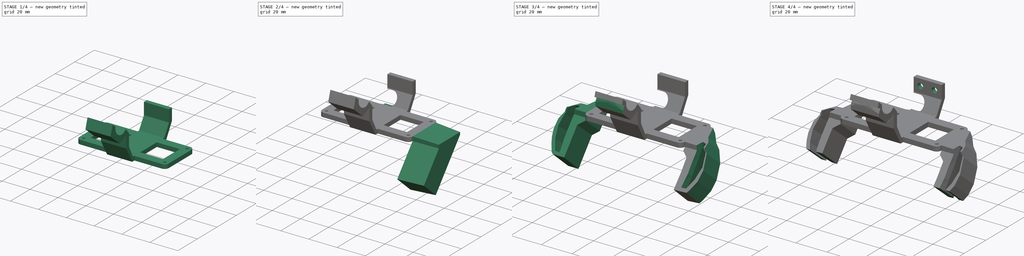
[diagram: build sequence overview — one tinted view per stage of 4, left to right]
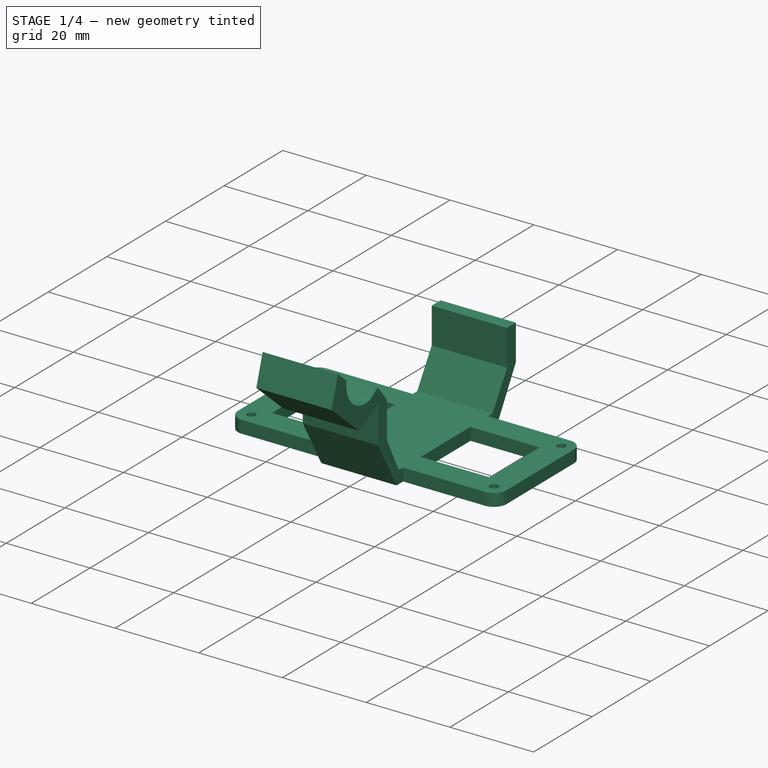
[diagram: stage 1 of 4 — iso view after this stage's code; geometry added in this stage tinted green]
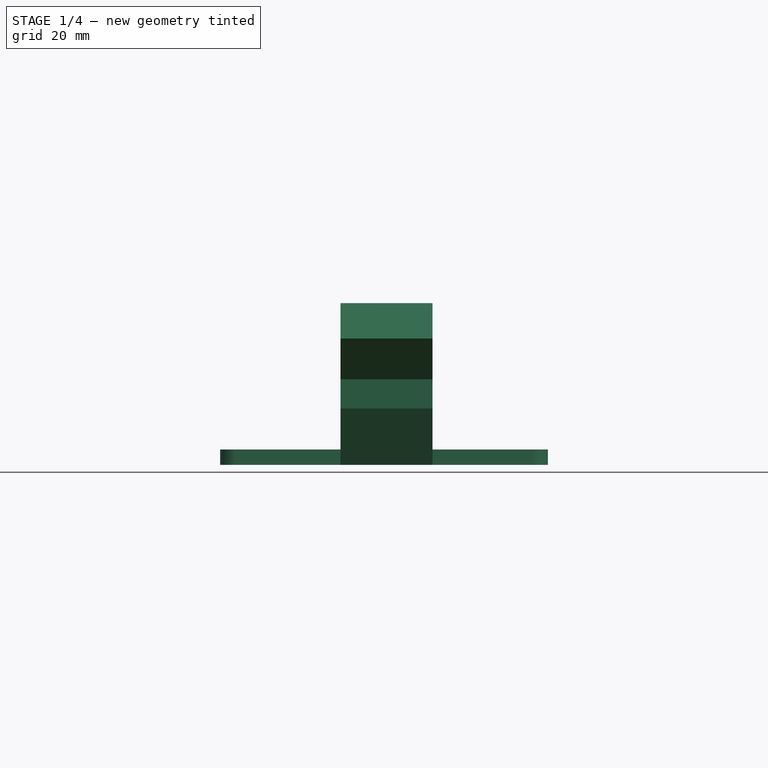
[diagram: stage 1 of 4 — front view after this stage's code; geometry added in this stage tinted green]
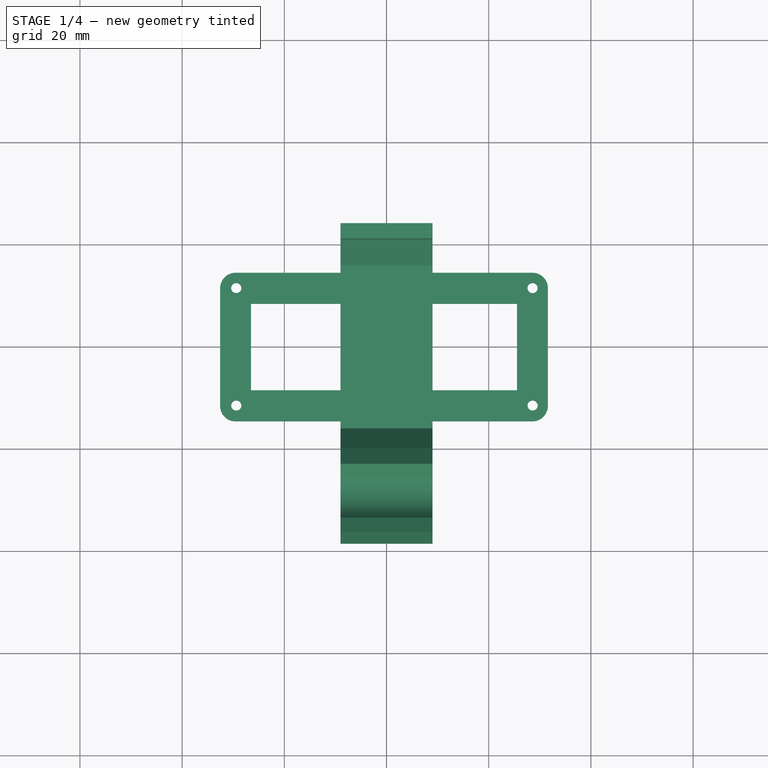
[diagram: stage 1 of 4 — top view after this stage's code; geometry added in this stage tinted green]
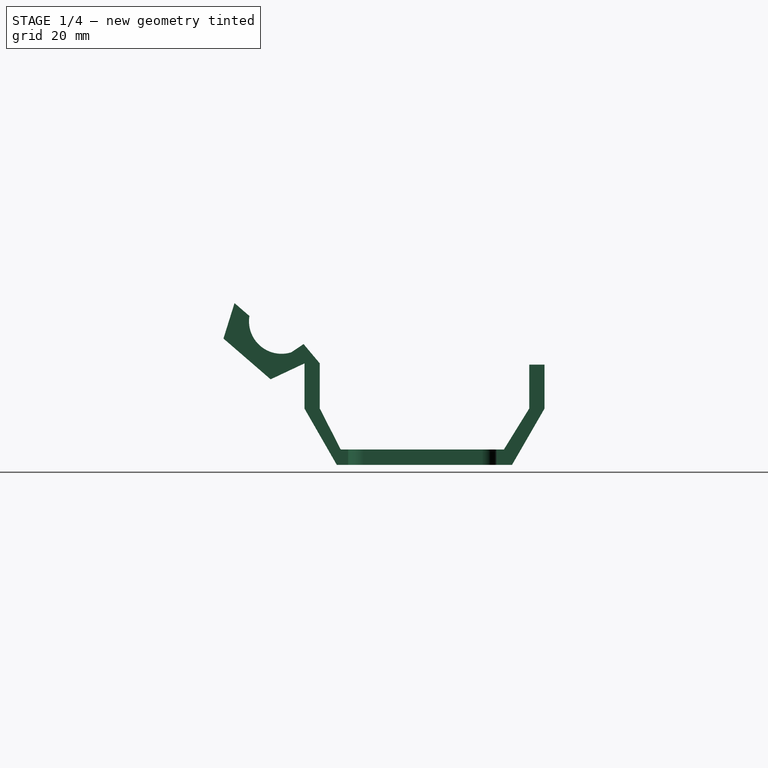
[diagram: stage 1 of 4 — right view after this stage's code; geometry added in this stage tinted green]
FCSTD DOCUMENT  (FreeCAD 1.0R39319 (Git))
Label: mount
License: All rights reserved
LicenseURL: https://en.wikipedia.org/wiki/All_rights_reserved
objects: Sketcher::SketchObject×8, PartDesign::Pad×4, PartDesign::Pocket×4, Part::Feature×3, App::Link×1, PartDesign::Boolean×1, PartDesign::Body×1
note: 46 computed .brp shape members not serialized (recipe doc carries the construction recipe); baked Part::Feature solids carry a one-line shape summary decoded from their .brp
EXTERNAL_REF file=maixsense.FCStd obj=Body

FEATURE [App::Link] Link
  LinkPlacement = pos=(-19.7,18.4,8.2) rot=(0,0,-1;1.5708rad)
  LinkedObject = -> <external maixsense.FCStd>#Body
  Placement = pos=(-19.7,18.4,8.2) rot=(0,0,-1;1.5708rad)
FEATURE [Part::Feature] Feature  label="Raspberry Pi Zero 2 W001"
  Placement = pos=(-0.4,1.3e-15,-7.1) rot=(0,-0.707107,-0.707107;3.14159rad)
  shape: bbox 65.8 x 30.59 x 5.051 mm, 7119 faces, 268 solids (baked)
FEATURE [Sketcher::SketchObject] Sketch
  ArcFitTolerance = 1e-06
  AttachmentSupport = -> [YZ_Plane]
  FullyConstrained = false
  MakeInternals = false
  MapMode = 5
  Placement = pos=(0,0,0) rot=(0.57735,0.57735,0.57735;2.0944rad)
  sketch-geometry (20):
    g0: LineSegment [constr] StartX=0 StartY=0 StartZ=0 EndX=-20.0923 EndY=0 EndZ=0
    g1: LineSegment [constr] StartX=0 StartY=0 StartZ=0 EndX=20.8974 EndY=0 EndZ=0
    g2: LineSegment StartX=20.8974 StartY=0 StartZ=0 EndX=20.8974 EndY=8.60191 EndZ=0
    g3: LineSegment StartX=20.8974 StartY=8.60191 StartZ=0 EndX=23.8974 EndY=8.60191 EndZ=0
    g4: LineSegment StartX=23.8974 StartY=8.60191 StartZ=0 EndX=23.8974 EndY=0 EndZ=0
    g5: LineSegment StartX=-23.0923 StartY=0 StartZ=0 EndX=-16.7597 EndY=-11.026 EndZ=0
    g6: LineSegment StartX=23.8974 StartY=0 StartZ=0 EndX=17.5315 EndY=-11.026 EndZ=0
    g7: LineSegment StartX=17.5315 StartY=-11.026 StartZ=0 EndX=-16.7597 EndY=-11.026 EndZ=0
    g8: LineSegment StartX=15.9428 StartY=-8.01294 StartZ=0 EndX=-15.9958 EndY=-8.01294 EndZ=0
    g9: LineSegment StartX=-15.9958 StartY=-8.01294 StartZ=0 EndX=-20.0923 EndY=0 EndZ=0
    g10: LineSegment StartX=15.9428 StartY=-8.01294 StartZ=0 EndX=20.8974 EndY=0 EndZ=0
    g11: ArcOfCircle CenterX=-27.5798 CenterY=17.0816 CenterZ=0 NormalX=0 NormalY=0 NormalZ=1 AngleXU=0 Radius=6.37006 StartAngle=2.97846 EndAngle=5.0237
    g12: LineSegment StartX=-33.8653 StartY=18.1161 StartZ=0 EndX=-36.7757 EndY=20.6243 EndZ=0
    g13: LineSegment StartX=-20.0923 StartY=8.83189 StartZ=0 EndX=-23.2666 EndY=12.6185 EndZ=0
    g14: LineSegment StartX=-23.0923 StartY=8.83189 StartZ=0 EndX=-29.7111 EndY=5.71845 EndZ=0
    g15: LineSegment StartX=-29.7111 StartY=5.71845 StartZ=0 EndX=-38.9446 EndY=13.6958 EndZ=0
    g16: LineSegment StartX=-23.0923 StartY=0 StartZ=0 EndX=-23.0923 EndY=8.83189 EndZ=0
    g17: LineSegment StartX=-20.0923 StartY=8.83189 StartZ=0 EndX=-20.0923 EndY=0 EndZ=0
    g18: LineSegment StartX=-25.6286 StartY=11.0177 StartZ=0 EndX=-23.2666 EndY=12.6185 EndZ=0
    g19: LineSegment StartX=-36.7757 StartY=20.6243 StartZ=0 EndX=-38.9446 EndY=13.6958 EndZ=0
  constraints (34):
    c: Coincident(g0,g-1)
    c: Horizontal(g0)
    c: Coincident(g1,g0)
    c: PointOnObject(g1,g-1)
    c: Coincident(g2,g1)
    c: Vertical(g2)
    c: Distance(g3) = 3
    c: Coincident(g3,g2)
    c: Horizontal(g3)
    c: PointOnObject(g5,g-1)
    c: Coincident(g4,g3)
    c: PointOnObject(g4,g-1)
    c: Vertical(g4)
    c: Coincident(g6,g4)
    c: Coincident(g7,g6)
    c: Coincident(g7,g5)
    c: Horizontal(g7)
    c: Horizontal(g8)
    c: Coincident(g9,g8)
    c: Coincident(g9,g0)
    c: Coincident(g10,g8)
    c: Coincident(g10,g1)
    c: Coincident(g11,g12)
    c: Coincident(g15,g14)
    c: Coincident(g16,g5)
    c: Coincident(g16,g14)
    c: Vertical(g16)
    c: Coincident(g17,g13)
    c: Coincident(g17,g0)
    c: Vertical(g17)
    c: Coincident(g18,g11)
    c: Coincident(g18,g13)
    c: Coincident(g19,g12)
    c: Coincident(g19,g15)
FEATURE [PartDesign::Pad] Pad
  Direction = (1,0,0)
  Length = 18
  Length2 = 10
  Midplane = true
  Placement = pos=(0,0,0) rot=(1,1,1;2.0944rad)
  Profile = -> Sketch
  ReferenceAxis = -> Sketch [N_Axis]
  Refine = true
  Suppressed = false
  Type = 0
FEATURE [Sketcher::SketchObject] Sketch001
  ArcFitTolerance = 1e-06
  AttachmentSupport = -> [Pad]
  FullyConstrained = false
  MakeInternals = false
  MapMode = 5
  Placement = pos=(1.2e-15,-3.7e-15,-11.026) rot=(0.707107,0.707107,0;3.14159rad)
  sketch-geometry (20):
    g0: ArcOfCircle CenterX=-11.5396 CenterY=28.5572 CenterZ=0 NormalX=0 NormalY=0 NormalZ=1 AngleXU=0 Radius=3.02156 StartAngle=1.5708 EndAngle=3.14159
    g1: ArcOfCircle CenterX=-11.5437 CenterY=-29.5407 CenterZ=0 NormalX=0 NormalY=0 NormalZ=1 AngleXU=0 Radius=3.02509 StartAngle=3.21254 EndAngle=4.71239
    g2: ArcOfCircle CenterX=11.4506 CenterY=-29.5411 CenterZ=0 NormalX=0 NormalY=0 NormalZ=1 AngleXU=0 Radius=3.02547 StartAngle=4.69011 EndAngle=6.28319
    g3: LineSegment StartX=-14.5612 StartY=-29.7552 StartZ=0 EndX=-14.5612 EndY=28.5572 EndZ=0
    g4: LineSegment StartX=-11.5396 StartY=31.5787 StartZ=0 EndX=11.7435 EndY=31.5787 EndZ=0
    g5: LineSegment StartX=11.3832 StartY=-32.5658 StartZ=0 EndX=-11.5437 EndY=-32.5658 EndZ=0
    g6: LineSegment StartX=-8.51894 StartY=-26.5157 StartZ=0 EndX=8.42514 EndY=-26.5157 EndZ=0
    g7: LineSegment StartX=8.42514 StartY=-26.5157 StartZ=0 EndX=8.42514 EndY=25.5356 EndZ=0
    g8: LineSegment StartX=-8.51894 StartY=25.5356 StartZ=0 EndX=-8.51894 EndY=-26.5157 EndZ=0
    g9: Circle [constr] CenterX=-11.4897 CenterY=-29.4019 CenterZ=0 NormalX=0 NormalY=0 NormalZ=1 AngleXU=0 Radius=1.34936
    g10: Circle [constr] CenterX=11.5033 CenterY=-29.4084 CenterZ=0 NormalX=0 NormalY=0 NormalZ=1 AngleXU=0 Radius=1.35214
    g11: Circle [constr] CenterX=11.4949 CenterY=28.5824 CenterZ=0 NormalX=0 NormalY=0 NormalZ=1 AngleXU=0 Radius=1.34445
    g12: Circle [constr] CenterX=-11.4868 CenterY=28.5991 CenterZ=0 NormalX=0 NormalY=0 NormalZ=1 AngleXU=0 Radius=1.34134
    g13: LineSegment StartX=8.42514 StartY=25.5356 StartZ=0 EndX=-8.51894 EndY=25.5356 EndZ=0
    g14: ArcOfCircle CenterX=11.4472 CenterY=28.5644 CenterZ=0 NormalX=0 NormalY=0 NormalZ=1 AngleXU=0 Radius=3.02888 StartAngle=6.28062 EndAngle=7.75602
    g15: LineSegment StartX=14.4761 StartY=28.5566 StartZ=0 EndX=14.4761 EndY=-29.5411 EndZ=0
    g16: Circle CenterX=-11.4897 CenterY=-29.4019 CenterZ=0 NormalX=0 NormalY=0 NormalZ=1 AngleXU=0 Radius=1
    g17: Circle CenterX=11.5033 CenterY=-29.4084 CenterZ=0 NormalX=0 NormalY=0 NormalZ=1 AngleXU=0 Radius=1
    g18: Circle CenterX=11.4949 CenterY=28.5824 CenterZ=0 NormalX=0 NormalY=0 NormalZ=1 AngleXU=0 Radius=1
    g19: Circle CenterX=-11.4868 CenterY=28.5991 CenterZ=0 NormalX=0 NormalY=0 NormalZ=1 AngleXU=0 Radius=1
  constraints (27):
    c: Vertical(g3)
    c: Horizontal(g4)
    c: Horizontal(g5)
    c: Horizontal(g6)
    c: Vertical(g7)
    c: Vertical(g8)
    c: Coincident(g7,g13)
    c: Tangent(g0,g3) = 1.5708
    c: Coincident(g8,g13)
    c: Tangent(g0,g4) = 1.5708
    c: Tangent(g1,g5) = 1.5708
    c: Coincident(g8,g6)
    c: Coincident(g7,g6)
    c: Coincident(g14,g4)
    c: Coincident(g1,g3)
    c: Coincident(g5,g2)
    c: Coincident(g15,g14)
    c: Tangent(g15,g2) = 1.5708
    c: Vertical(g15)
    c: Diameter(g16) = 2
    c: Coincident(g16,g9)
    c: Diameter(g17) = 2
    c: Coincident(g17,g10)
    c: Diameter(g18) = 2
    c: Coincident(g18,g11)
    c: Diameter(g19) = 2
    c: Coincident(g19,g12)
FEATURE [PartDesign::Pad] Pad001
  BaseFeature = -> Pad
  Direction = (0,0,-1)
  Length = 3
  Length2 = 10
  Placement = pos=(0,0,0) rot=(1,1,1;2.0944rad)
  Profile = -> Sketch001
  ReferenceAxis = -> Sketch001 [N_Axis]
  Refine = true
  Reversed = true
  Suppressed = false
  Type = 0
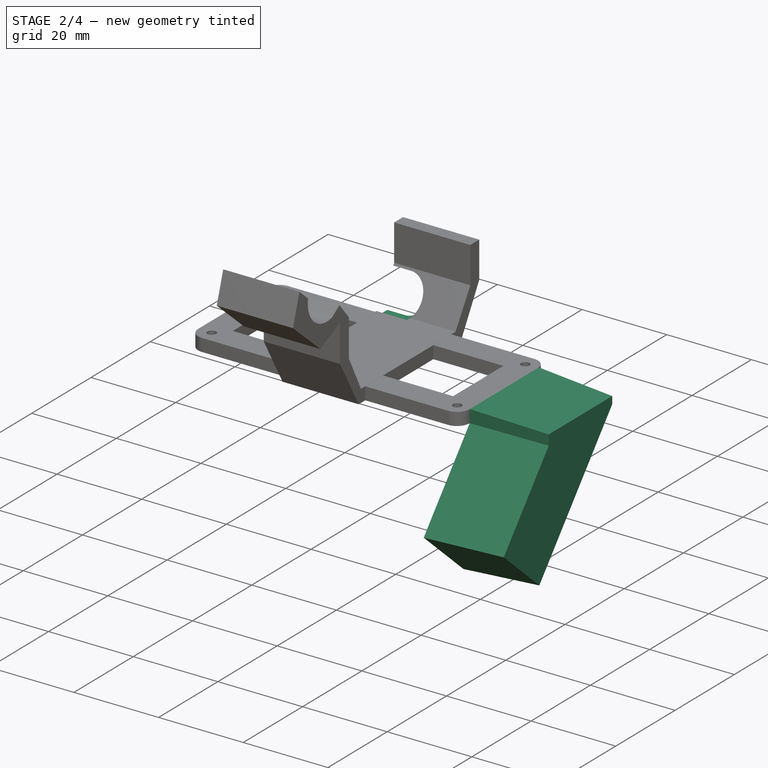
[diagram: stage 2 of 4 — iso view after this stage's code; geometry added in this stage tinted green]
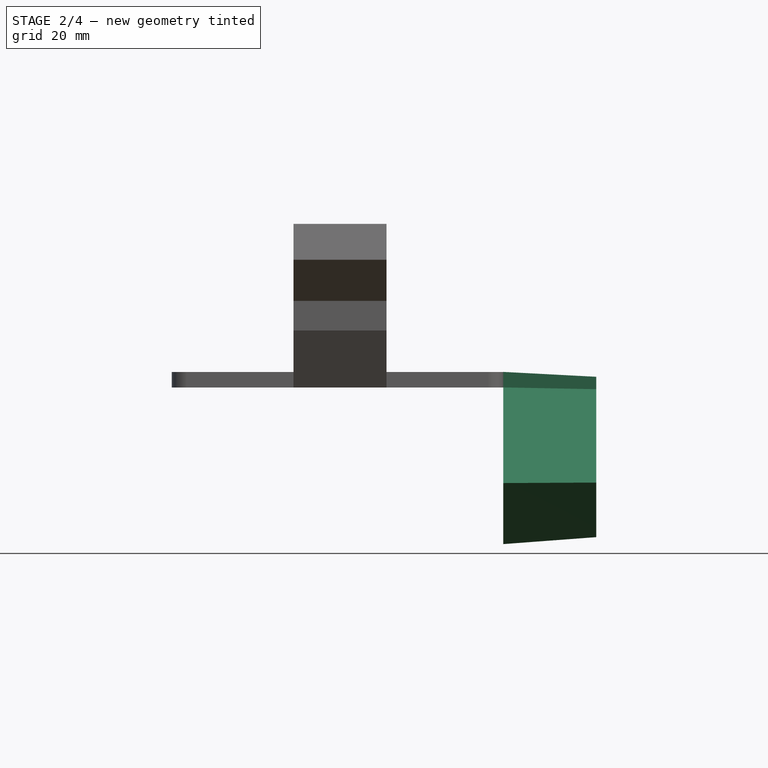
[diagram: stage 2 of 4 — front view after this stage's code; geometry added in this stage tinted green]
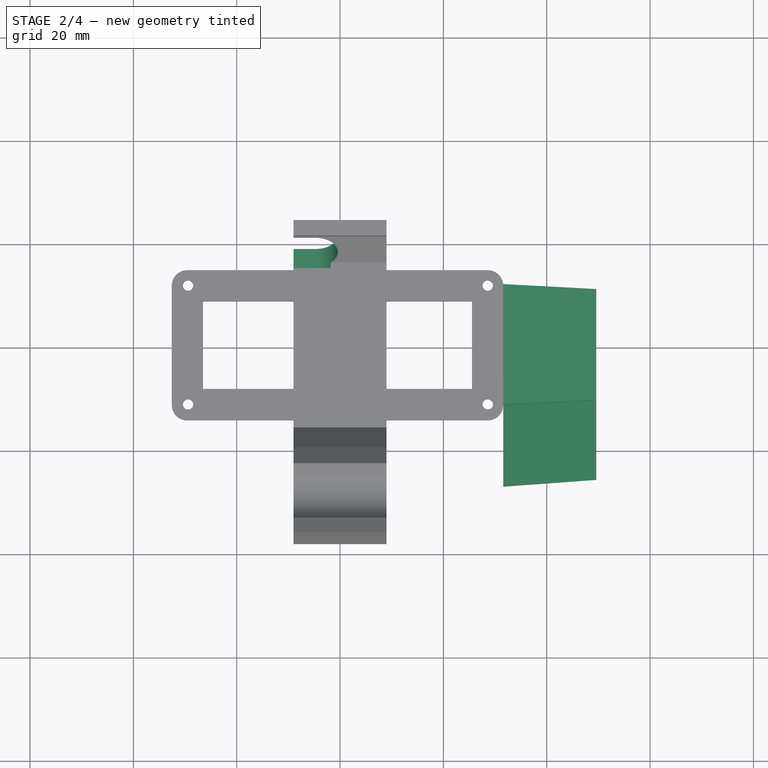
[diagram: stage 2 of 4 — top view after this stage's code; geometry added in this stage tinted green]
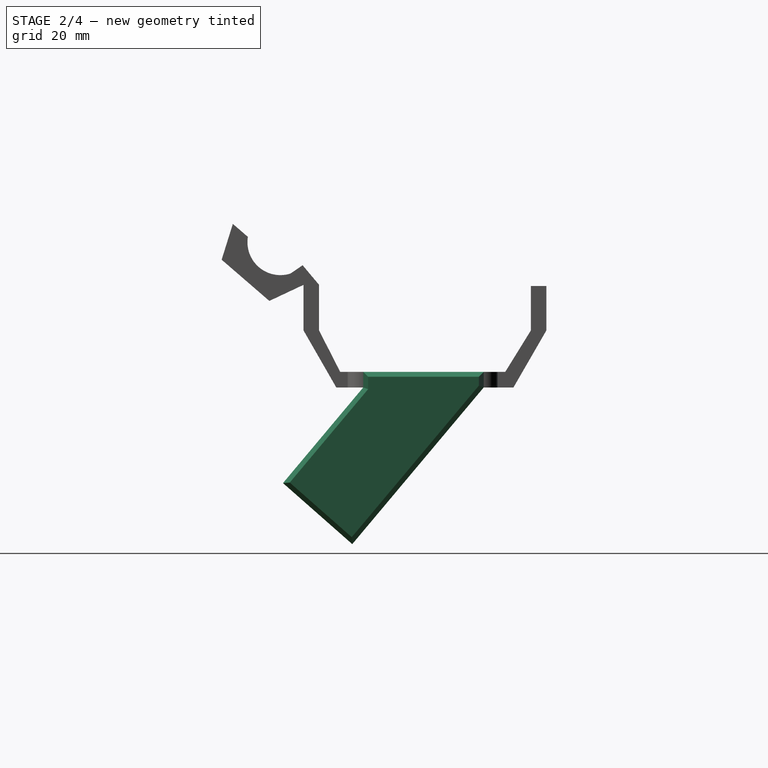
[diagram: stage 2 of 4 — right view after this stage's code; geometry added in this stage tinted green]
FEATURE [Sketcher::SketchObject] Sketch002
  ArcFitTolerance = 1e-06
  AttachmentSupport = -> [Pad001]
  FullyConstrained = false
  MakeInternals = false
  MapMode = 5
  Placement = pos=(5.3e-15,23.8974,-1.06e-14) rot=(0.57735,0.57735,0.57735;4.18879rad)
  sketch-geometry (4):
    g0: ArcOfCircle CenterX=-4.84086 CenterY=-27.4999 CenterZ=0 NormalX=0 NormalY=0 NormalZ=1 AngleXU=0 Radius=4.34815 StartAngle=3.14159 EndAngle=6.28319
    g1: ArcOfCircle CenterX=-4.84086 CenterY=-4.76619 CenterZ=0 NormalX=0 NormalY=0 NormalZ=1 AngleXU=0 Radius=4.34815 StartAngle=0 EndAngle=3.14159
    g2: LineSegment StartX=-9.18902 StartY=-27.4999 StartZ=0 EndX=-9.18902 EndY=-4.76619 EndZ=0
    g3: LineSegment StartX=-0.492713 StartY=-27.4999 StartZ=0 EndX=-0.492713 EndY=-4.76619 EndZ=0
  constraints (6):
    c: Tangent(g0,g2) = 1.5708
    c: Tangent(g0,g3) = -1.5708
    c: Tangent(g1,g2) = 1.5708
    c: Tangent(g1,g3) = -1.5708
    c: Equal(g0,g1)
    c: Vertical(g2)
FEATURE [PartDesign::Pocket] Pocket
  BaseFeature = -> Pad001
  Direction = (0,-1,0)
  Length = 9
  Length2 = 5
  Placement = pos=(0,0,0) rot=(1,1,1;2.0944rad)
  Profile = -> Sketch002
  ReferenceAxis = -> Sketch002 [N_Axis]
  Refine = true
  Suppressed = false
  Type = 0
FEATURE [Sketcher::SketchObject] Sketch003
  ArcFitTolerance = 1e-06
  AttachmentSupport = -> [Pocket]
  FullyConstrained = false
  MakeInternals = false
  MapMode = 5
  Placement = pos=(31.5787,-1.4e-14,1.4e-14) rot=(0.57735,0.57735,0.57735;2.0944rad)
  sketch-geometry (6):
    g0: LineSegment StartX=11.7802 StartY=-11.0191 StartZ=0 EndX=11.7802 EndY=-8.01906 EndZ=0
    g1: LineSegment StartX=11.7802 StartY=-8.01906 StartZ=0 EndX=-11.541 EndY=-8.01906 EndZ=0
    g2: LineSegment StartX=-11.541 StartY=-8.01906 StartZ=0 EndX=-11.541 EndY=-11.0191 EndZ=0
    g3: LineSegment StartX=11.7802 StartY=-11.0191 StartZ=0 EndX=-13.6659 EndY=-41.3446 EndZ=0
    g4: LineSegment StartX=-11.541 StartY=-11.0191 StartZ=0 EndX=-27.0764 EndY=-29.5335 EndZ=0
    g5: LineSegment StartX=-27.0764 StartY=-29.5335 StartZ=0 EndX=-13.6659 EndY=-41.3446 EndZ=0
  constraints (10):
    c: Coincident(g0,g1)
    c: Coincident(g1,g2)
    c: Vertical(g0)
    c: Vertical(g2)
    c: Horizontal(g1)
    c: Distance(g1,g0) = 3
    c: Coincident(g3,g0)
    c: Coincident(g4,g2)
    c: Coincident(g5,g4)
    c: Coincident(g5,g3)
FEATURE [PartDesign::Pad] Pad002
  BaseFeature = -> Pocket
  Direction = (1,0,0)
  Length = 18
  Length2 = 10
  Placement = pos=(0,0,0) rot=(1,1,1;2.0944rad)
  Profile = -> Sketch003
  ReferenceAxis = -> Sketch003 [N_Axis]
  Refine = true
  Suppressed = false
  TaperAngle = -3
  Type = 0
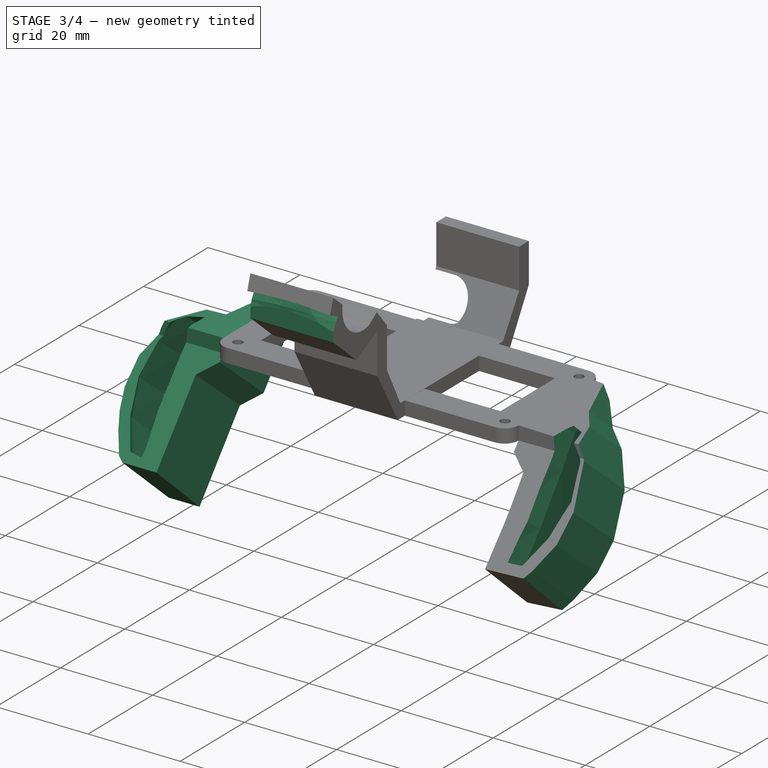
[diagram: stage 3 of 4 — iso view after this stage's code; geometry added in this stage tinted green]
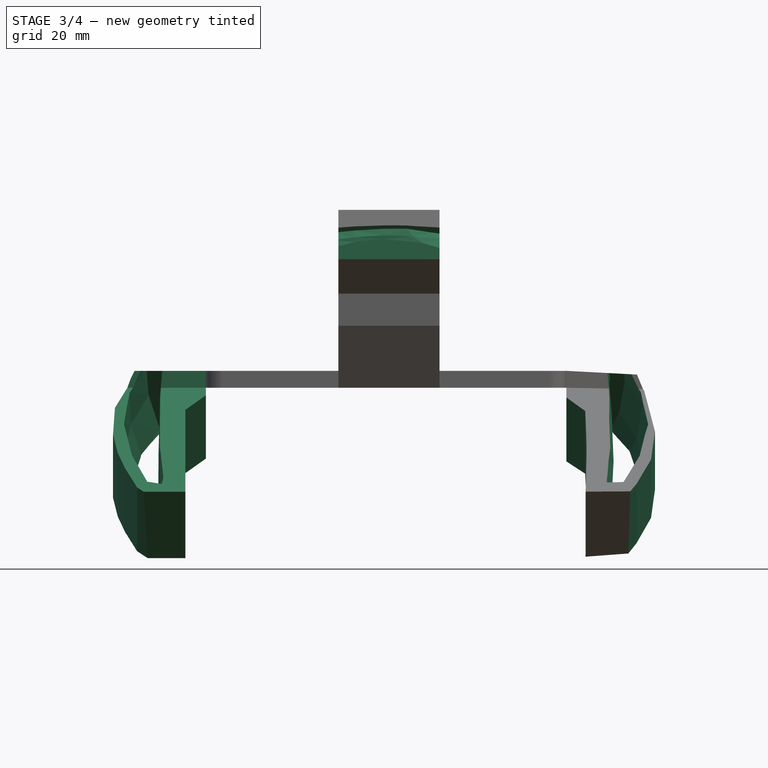
[diagram: stage 3 of 4 — front view after this stage's code; geometry added in this stage tinted green]
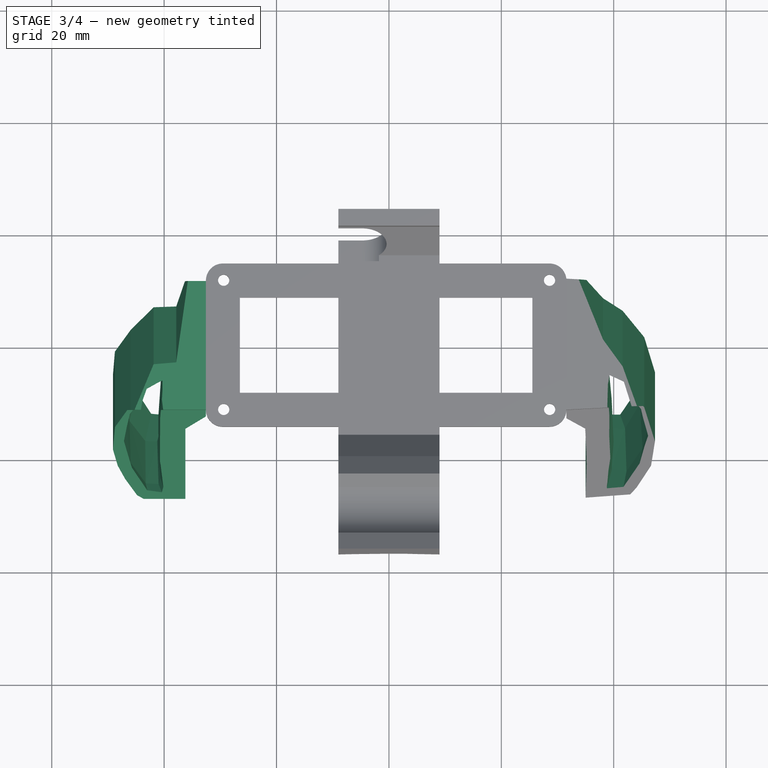
[diagram: stage 3 of 4 — top view after this stage's code; geometry added in this stage tinted green]
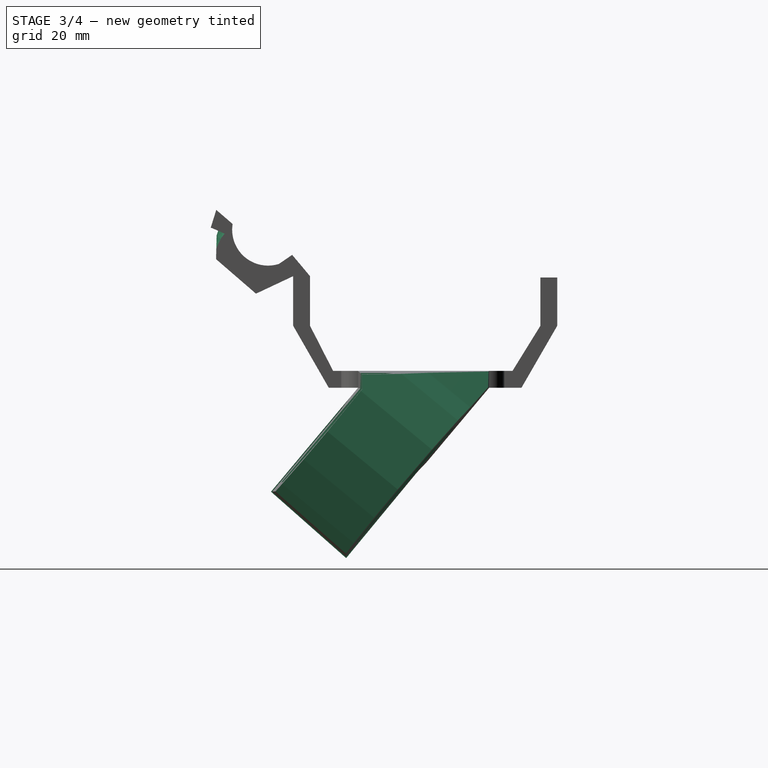
[diagram: stage 3 of 4 — right view after this stage's code; geometry added in this stage tinted green]
FEATURE [Sketcher::SketchObject] Sketch004
  ArcFitTolerance = 1e-06
  AttachmentSupport = -> [Pad002]
  FullyConstrained = false
  MakeInternals = false
  MapMode = 5
  Placement = pos=(-32.5658,2.17e-14,-1.81e-14) rot=(0.57735,0.57735,-0.57735;4.18879rad)
  sketch-geometry (6):
    g0: LineSegment StartX=-11.5479 StartY=11.0326 StartZ=0 EndX=-11.5479 EndY=8.02691 EndZ=0
    g1: LineSegment StartX=-11.5479 StartY=8.02691 StartZ=0 EndX=11.3683 EndY=8.02691 EndZ=0
    g2: LineSegment StartX=11.3683 StartY=8.02691 StartZ=0 EndX=11.3683 EndY=11.0326 EndZ=0
    g3: LineSegment StartX=11.3683 StartY=11.0326 StartZ=0 EndX=-13.6652 EndY=41.3392 EndZ=0
    g4: LineSegment StartX=-11.5479 StartY=11.0326 StartZ=0 EndX=-27.0415 EndY=29.5257 EndZ=0
    g5: LineSegment StartX=-27.0415 StartY=29.5257 StartZ=0 EndX=-13.6652 EndY=41.3392 EndZ=0
  constraints (7):
    c: Coincident(g0,g1)
    c: Coincident(g1,g2)
    c: Horizontal(g1)
    c: Vertical(g0)
    c: Vertical(g2)
    c: Coincident(g5,g4)
    c: Coincident(g5,g3)
FEATURE [PartDesign::Pad] Pad003
  BaseFeature = -> Pad002
  Direction = (-1,0,0)
  Length = 18
  Length2 = 10
  Placement = pos=(0,0,0) rot=(1,1,1;2.0944rad)
  Profile = -> Sketch004
  ReferenceAxis = -> Sketch004 [N_Axis]
  Refine = true
  Suppressed = false
  Type = 0
FEATURE [Sketcher::SketchObject] Sketch005
  ArcFitTolerance = 1e-06
  AttachmentSupport = -> [Pad003]
  FullyConstrained = false
  MakeInternals = false
  MapMode = 5
  Placement = pos=(3.8e-15,12.1747,-10.0564) rot=(0.670875,0.670875,0.315997;3.75373rad)
  sketch-geometry (71):
    g0: LineSegment [constr] StartX=-38.7137 StartY=-40.9081 StartZ=0 EndX=-37.8812 EndY=-42.4356 EndZ=0
    g1: LineSegment [constr] StartX=-37.8812 StartY=-42.4356 StartZ=0 EndX=-34.8988 EndY=-44.0081 EndZ=0
    g2: LineSegment [constr] StartX=-34.8988 StartY=-44.0081 StartZ=0 EndX=-32.5342 EndY=-44.8666 EndZ=0
    g3: LineSegment [constr] StartX=-32.5342 StartY=-44.8666 StartZ=0 EndX=-29.7706 EndY=-45.6297 EndZ=0
    g4: LineSegment [constr] StartX=-29.7706 StartY=-45.6297 StartZ=0 EndX=-26.3692 EndY=-46.1302 EndZ=0
    g5: LineSegment [constr] StartX=-26.3692 StartY=-46.1302 StartZ=0 EndX=-22.9927 EndY=-45.9805 EndZ=0
    g6: LineSegment [constr] StartX=-22.9927 StartY=-45.9805 StartZ=0 EndX=-20.0539 EndY=-45.5306 EndZ=0
    g7: LineSegment [constr] StartX=-20.0539 StartY=-45.5306 StartZ=0 EndX=-15.8019 EndY=-43.9803 EndZ=0
    g8: LineSegment [constr] StartX=-15.8019 StartY=-43.9803 StartZ=0 EndX=-13.5309 EndY=-42.5819 EndZ=0
    g9: LineSegment [constr] StartX=-13.5309 StartY=-42.5819 StartZ=0 EndX=-12.0376 EndY=-41.5641 EndZ=0
    g10: LineSegment [constr] StartX=-11.1996 StartY=-40.001 StartZ=0 EndX=-10.9868 EndY=-38.3628 EndZ=0
    g11: LineSegment [constr] StartX=-10.9868 StartY=-38.3628 StartZ=0 EndX=-12.8807 EndY=-38.3628 EndZ=0
    g12: LineSegment [constr] StartX=-12.8807 StartY=-38.3628 StartZ=0 EndX=-19.6194 EndY=-38.9646 EndZ=0
    g13: LineSegment [constr] StartX=-19.6194 StartY=-38.9646 StartZ=0 EndX=-23.2946 EndY=-39.2132 EndZ=0
    g14: LineSegment [constr] StartX=-23.2946 StartY=-39.2132 StartZ=0 EndX=-30.3892 EndY=-39.5177 EndZ=0
    g15: LineSegment [constr] StartX=-30.3892 StartY=-39.5177 StartZ=0 EndX=-37.8188 EndY=-39.5177 EndZ=0
    g16: LineSegment [constr] StartX=-37.8188 StartY=-39.5177 StartZ=0 EndX=-38.7137 EndY=-40.9081 EndZ=0
    g17: LineSegment [constr] StartX=-12.0376 StartY=-41.5641 StartZ=0 EndX=-11.1996 EndY=-40.001 EndZ=0
    g18: LineSegment StartX=6.85978 StartY=-34.4833 StartZ=0 EndX=6.85978 EndY=-55.5149 EndZ=0
    g19: LineSegment StartX=6.85978 StartY=-55.5149 StartZ=0 EndX=-46.7356 EndY=-55.5149 EndZ=0
    g20: LineSegment StartX=-46.7356 StartY=-55.5149 StartZ=0 EndX=-44.6744 EndY=-38.0724 EndZ=0
    g21: LineSegment StartX=-44.6744 StartY=-38.0724 StartZ=0 EndX=-38.9894 EndY=-44.8106 EndZ=0
    g22: LineSegment StartX=-38.9894 StartY=-44.8106 StartZ=0 EndX=-34.5337 EndY=-46.9558 EndZ=0
    g23: LineSegment StartX=-34.5337 StartY=-46.9558 StartZ=0 EndX=-30.9554 EndY=-48.2611 EndZ=0
    g24: LineSegment StartX=-30.9554 StartY=-48.2611 StartZ=0 EndX=-26.6663 EndY=-49.0955 EndZ=0
    g25: LineSegment StartX=-26.6663 StartY=-49.0955 StartZ=0 EndX=-20.5191 EndY=-48.7598 EndZ=0
    g26: LineSegment StartX=-20.5191 StartY=-48.7598 StartZ=0 EndX=-14.5977 EndY=-45.9544 EndZ=0
    g27: LineSegment StartX=-14.5977 StartY=-45.9544 StartZ=0 EndX=-8.3868 EndY=-41.8763 EndZ=0
    g28: LineSegment StartX=-8.3868 StartY=-41.8763 StartZ=0 EndX=-8.17214 EndY=-37.8459 EndZ=0
    g29: LineSegment StartX=-8.17214 StartY=-37.8459 StartZ=0 EndX=6.85978 EndY=-34.4833 EndZ=0
    g30: LineSegment StartX=-20.9744 StartY=-36.2299 StartZ=0 EndX=-42.7426 EndY=-36.2299 EndZ=0
    g31: LineSegment StartX=-42.7426 StartY=-36.2299 StartZ=0 EndX=-43.4569 EndY=-32.49 EndZ=0
    g32: LineSegment StartX=-43.4569 StartY=-32.49 StartZ=0 EndX=-41.7108 EndY=-32.3601 EndZ=0
    g33: LineSegment StartX=-41.7108 StartY=-32.3601 StartZ=0 EndX=-17.4117 EndY=-32.3601 EndZ=0
    g34: LineSegment StartX=-20.9744 StartY=-36.2299 StartZ=0 EndX=-17.4117 EndY=-32.3601 EndZ=0
    g35: LineSegment [constr] StartX=-38.7137 StartY=-40.9081 StartZ=0 EndX=-37.8812 EndY=-42.4356 EndZ=0
    g36: LineSegment [constr] StartX=-37.8812 StartY=-42.4356 StartZ=0 EndX=-34.8988 EndY=-44.0081 EndZ=0
    g37: LineSegment [constr] StartX=-34.8988 StartY=-44.0081 StartZ=0 EndX=-32.5342 EndY=-44.8666 EndZ=0
    g38: LineSegment [constr] StartX=-32.5342 StartY=-44.8666 StartZ=0 EndX=-29.7706 EndY=-45.6297 EndZ=0
    g39: LineSegment [constr] StartX=-29.7706 StartY=-45.6297 StartZ=0 EndX=-26.3692 EndY=-46.1302 EndZ=0
    g40: LineSegment [constr] StartX=-26.3692 StartY=-46.1302 StartZ=0 EndX=-22.9927 EndY=-45.9805 EndZ=0
    g41: LineSegment [constr] StartX=-22.9927 StartY=-45.9805 StartZ=0 EndX=-20.0539 EndY=-45.5306 EndZ=0
    g42: LineSegment [constr] StartX=-20.0539 StartY=-45.5306 StartZ=0 EndX=-15.8019 EndY=-43.9803 EndZ=0
    g43: LineSegment [constr] StartX=-15.8019 StartY=-43.9803 StartZ=0 EndX=-13.5309 EndY=-42.5819 EndZ=0
    g44: LineSegment [constr] StartX=-13.5309 StartY=-42.5819 StartZ=0 EndX=-12.0376 EndY=-41.5641 EndZ=0
    g45: LineSegment [constr] StartX=-11.1996 StartY=-40.001 StartZ=0 EndX=-10.9868 EndY=-38.3628 EndZ=0
    g46: LineSegment [constr] StartX=-10.9868 StartY=-38.3628 StartZ=0 EndX=-12.8807 EndY=-38.3628 EndZ=0
    g47: LineSegment [constr] StartX=-12.8807 StartY=-38.3628 StartZ=0 EndX=-19.6194 EndY=-38.9646 EndZ=0
    g48: LineSegment [constr] StartX=-19.6194 StartY=-38.9646 StartZ=0 EndX=-23.2946 EndY=-39.2132 EndZ=0
    g49: LineSegment [constr] StartX=-23.2946 StartY=-39.2132 StartZ=0 EndX=-30.3892 EndY=-39.5177 EndZ=0
    g50: LineSegment [constr] StartX=-30.3892 StartY=-39.5177 StartZ=0 EndX=-37.8188 EndY=-39.5177 EndZ=0
    g51: LineSegment [constr] StartX=-37.8188 StartY=-39.5177 StartZ=0 EndX=-38.7137 EndY=-40.9081 EndZ=0
    g52: LineSegment [constr] StartX=-12.0376 StartY=-41.5641 StartZ=0 EndX=-11.1996 EndY=-40.001 EndZ=0
    g53: LineSegment StartX=3.52579 StartY=44.4426 StartZ=0 EndX=8.11313 EndY=62.5589 EndZ=0
    g54: LineSegment StartX=8.11313 StartY=62.5589 StartZ=0 EndX=-48.5526 EndY=58.0839 EndZ=0
    g55: LineSegment StartX=-45.4684 StartY=39.1788 StartZ=0 EndX=-37.6543 EndY=44.0628 EndZ=0
    g56: LineSegment StartX=-37.6543 StartY=44.0628 StartZ=0 EndX=-31.861 EndY=46.6485 EndZ=0
    g57: LineSegment StartX=-25.3277 StartY=47.3444 StartZ=0 EndX=-15.972 EndY=45.4381 EndZ=0
    g58: LineSegment StartX=-15.972 StartY=45.4381 StartZ=0 EndX=-9.02866 EndY=41.5894 EndZ=0
    g59: LineSegment StartX=-9.02866 StartY=41.5894 StartZ=0 EndX=-5.83239 EndY=38.0974 EndZ=0
    g60: LineSegment StartX=2.3078 StartY=38.0974 StartZ=0 EndX=2.3078 EndY=33.0497 EndZ=0
    g61: LineSegment StartX=-30.8164 StartY=35.1746 StartZ=0 EndX=-42.8308 EndY=34.9467 EndZ=0
    g62: LineSegment StartX=-30.8164 StartY=35.1746 StartZ=0 EndX=-27.609 EndY=35.1399 EndZ=0
    g63: LineSegment StartX=-27.609 StartY=35.1399 StartZ=0 EndX=-21.1145 EndY=34.9302 EndZ=0
    g64: LineSegment StartX=-42.8308 StartY=34.9467 StartZ=0 EndX=-43.5681 EndY=31.1315 EndZ=0
    g65: LineSegment StartX=-21.1145 StartY=34.9302 StartZ=0 EndX=-17.7031 EndY=31.1315 EndZ=0
    g66: LineSegment StartX=-43.5681 StartY=31.1315 StartZ=0 EndX=-17.7031 EndY=31.1315 EndZ=0
    g67: LineSegment StartX=-31.861 StartY=46.6485 StartZ=0 EndX=-25.3277 EndY=47.3444 EndZ=0
    g68: LineSegment StartX=-5.83239 StartY=38.0974 StartZ=0 EndX=2.3078 EndY=33.0497 EndZ=0
    g69: LineSegment StartX=2.3078 StartY=38.0974 StartZ=0 EndX=3.52579 EndY=44.4426 EndZ=0
    g70: LineSegment StartX=-48.5526 StartY=58.0839 StartZ=0 EndX=-45.4684 EndY=39.1788 EndZ=0
  constraints (81):
    c: Coincident(g1,g0)
    c: Coincident(g2,g1)
    c: Coincident(g3,g2)
    c: Coincident(g4,g3)
    c: Coincident(g5,g4)
    c: Coincident(g6,g5)
    c: Coincident(g7,g6)
    c: Coincident(g8,g7)
    c: Coincident(g9,g8)
    c: Coincident(g11,g10)
    c: Horizontal(g11)
    c: Coincident(g12,g11)
    c: Coincident(g13,g12)
    c: Coincident(g14,g13)
    c: Coincident(g15,g14)
    c: Horizontal(g15)
    c: Coincident(g16,g15)
    c: Coincident(g16,g0)
    c: Coincident(g17,g9)
    c: Coincident(g17,g10)
    c: Vertical(g18)
    c: Coincident(g19,g18)
    c: Horizontal(g19)
    c: Coincident(g20,g19)
    c: Coincident(g21,g20)
    c: Coincident(g22,g21)
    c: Coincident(g23,g22)
    c: Coincident(g24,g23)
    c: Coincident(g25,g24)
    c: Coincident(g26,g25)
    c: Coincident(g27,g26)
    c: Coincident(g28,g27)
    c: Coincident(g29,g28)
    c: Coincident(g29,g18)
    c: Horizontal(g30)
    c: Coincident(g31,g30)
    c: Coincident(g33,g32)
    c: Horizontal(g33)
    c: Coincident(g34,g30)
    c: Coincident(g34,g33)
    c: Coincident(g31,g32)
    c: Coincident(g36,g35)
    c: Coincident(g37,g36)
    c: Coincident(g38,g37)
    c: Coincident(g39,g38)
    c: Coincident(g40,g39)
    c: Coincident(g41,g40)
    c: Coincident(g42,g41)
    c: Coincident(g43,g42)
    c: Coincident(g44,g43)
    c: Coincident(g46,g45)
    c: Horizontal(g46)
    c: Coincident(g47,g46)
    c: Coincident(g48,g47)
    c: Coincident(g49,g48)
    c: Coincident(g50,g49)
    c: Horizontal(g50)
    c: Coincident(g51,g50)
    c: Coincident(g51,g35)
    c: Coincident(g52,g44)
    c: Coincident(g52,g45)
    c: Coincident(g54,g53)
    c: Coincident(g56,g55)
    c: Coincident(g58,g57)
    c: Coincident(g59,g58)
    c: Vertical(g60)
    c: Coincident(g62,g61)
    c: Coincident(g63,g62)
    c: Coincident(g64,g61)
    c: Coincident(g65,g63)
    c: Coincident(g66,g64)
    c: Coincident(g66,g65)
    c: Horizontal(g66)
    c: Coincident(g67,g56)
    c: Coincident(g67,g57)
    c: Coincident(g68,g59)
    c: Coincident(g68,g60)
    c: Coincident(g69,g60)
    c: Coincident(g69,g53)
    c: Coincident(g70,g54)
    c: Coincident(g70,g55)
FEATURE [PartDesign::Pocket] Pocket001
  BaseFeature = -> Pad003
  Direction = (-1e-16,-0.770992,0.636845)
  Length = 5
  Length2 = 5
  Midplane = true
  Placement = pos=(0,0,0) rot=(1,1,1;2.0944rad)
  Profile = -> Sketch005
  ReferenceAxis = -> Sketch005 [N_Axis]
  Refine = true
  Suppressed = false
  Type = 1
FEATURE [Part::Feature] right_blender001_solid  label="right_blender001 (Solid)"
  Placement = pos=(-1.4,-39.6977,-23.8357) rot=(0,0.67559,0.737277;3.14159rad)
  shape: bbox 93.75 x 132.6 x 115.4 mm, 1468 faces (baked)
FEATURE [PartDesign::Boolean] Boolean
  BaseFeature = -> Pocket001
  Group = -> [right_blender001_solid]
  Refine = true
  Suppressed = false
  Type = 1
  UsePlacement = true
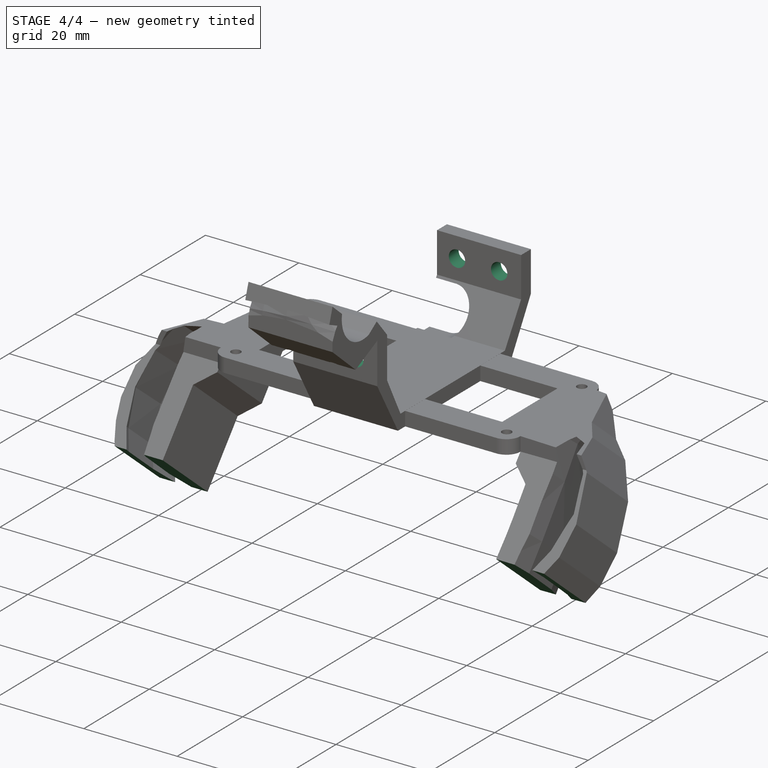
[diagram: stage 4 of 4 — iso view after this stage's code; geometry added in this stage tinted green]
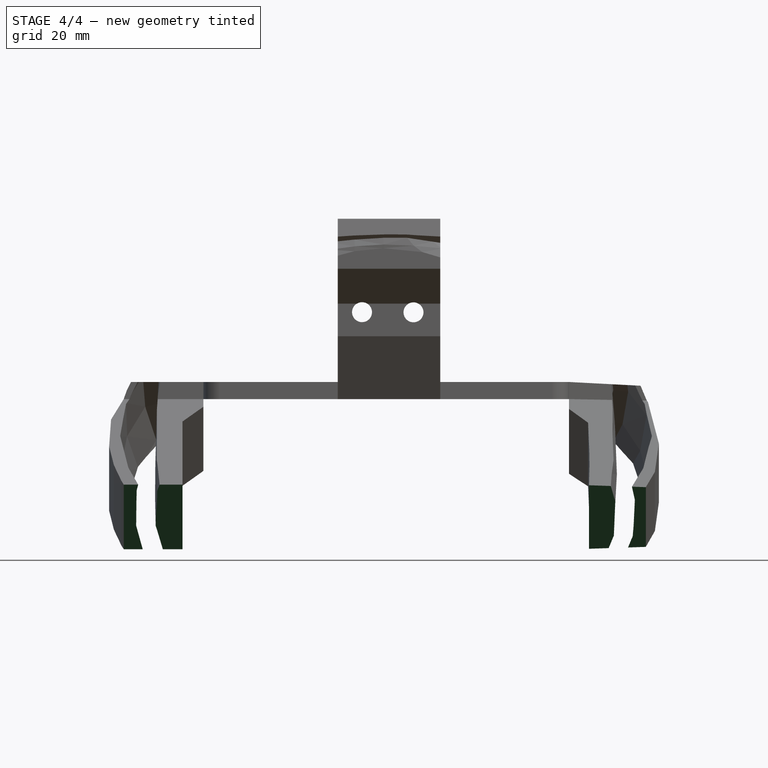
[diagram: stage 4 of 4 — front view after this stage's code; geometry added in this stage tinted green]
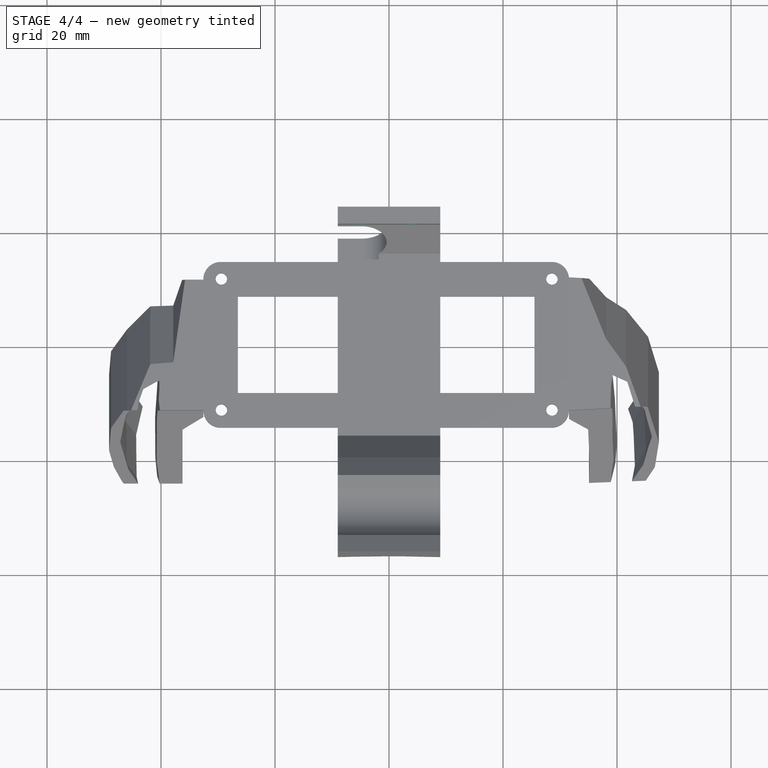
[diagram: stage 4 of 4 — top view after this stage's code; geometry added in this stage tinted green]
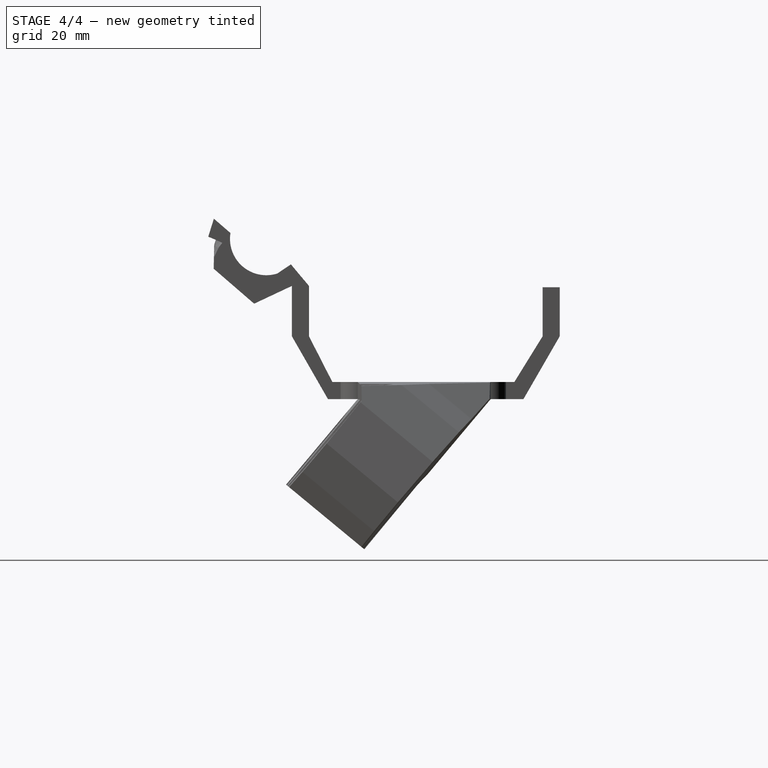
[diagram: stage 4 of 4 — right view after this stage's code; geometry added in this stage tinted green]
FEATURE [Sketcher::SketchObject] Sketch006
  ArcFitTolerance = 1e-06
  AttachmentSupport = -> [Boolean]
  FullyConstrained = false
  MakeInternals = false
  MapMode = 5
  Placement = pos=(5.3e-15,23.8974,-4.25e-14) rot=(0,0.707107,0.707107;3.14159rad)
  sketch-geometry (4):
    g0: Circle [constr] CenterX=-4.30016 CenterY=4.20123 CenterZ=0 NormalX=0 NormalY=0 NormalZ=1 AngleXU=0 Radius=2.99091
    g1: Circle [constr] CenterX=4.73205 CenterY=4.22867 CenterZ=0 NormalX=0 NormalY=0 NormalZ=1 AngleXU=0 Radius=2.98007
    g2: Circle CenterX=-4.30016 CenterY=4.20123 CenterZ=0 NormalX=0 NormalY=0 NormalZ=1 AngleXU=0 Radius=1.75
    g3: Circle CenterX=4.73205 CenterY=4.22867 CenterZ=0 NormalX=0 NormalY=0 NormalZ=1 AngleXU=0 Radius=1.75
  constraints (4):
    c: Diameter(g2) = 3.5
    c: Coincident(g2,g0)
    c: Diameter(g3) = 3.5
    c: Coincident(g3,g1)
FEATURE [PartDesign::Pocket] Pocket002
  BaseFeature = -> Boolean
  Direction = (0,-1,1.8e-15)
  Length = 5
  Length2 = 5
  Profile = -> Sketch006
  ReferenceAxis = -> Sketch006 [N_Axis]
  Refine = true
  Suppressed = false
  Type = 1
FEATURE [Part::Feature] right_blender001_solid001  label="right_blender001 (Solid)001"
  Placement = pos=(-1.4,-39.6977,-23.8357) rot=(0,0.67559,0.737277;3.14159rad)
  shape: bbox 93.75 x 132.6 x 115.4 mm, 1468 faces (baked)
FEATURE [Sketcher::SketchObject] Sketch007
  ArcFitTolerance = 1e-06
  AttachmentSupport = -> [Pocket002]
  FullyConstrained = false
  MakeInternals = false
  MapMode = 5
  Placement = pos=(7.2e-15,12.1747,-10.0564) rot=(0,0.904667,0.426119;3.14159rad)
  sketch-geometry (4):
    g0: LineSegment StartX=67.0611 StartY=-60.3916 StartZ=0 EndX=67.0611 EndY=-35.4249 EndZ=0
    g1: LineSegment StartX=67.0611 StartY=-35.4249 StartZ=0 EndX=-66.2193 EndY=-35.4249 EndZ=0
    g2: LineSegment StartX=-66.2193 StartY=-35.4249 StartZ=0 EndX=-66.2193 EndY=-60.3916 EndZ=0
    g3: LineSegment StartX=-66.2193 StartY=-60.3916 StartZ=0 EndX=67.0611 EndY=-60.3916 EndZ=0
  constraints (8):
    c: Coincident(g0,g1)
    c: Coincident(g1,g2)
    c: Coincident(g2,g3)
    c: Coincident(g3,g0)
    c: Vertical(g0)
    c: Vertical(g2)
    c: Horizontal(g1)
    c: Horizontal(g3)
FEATURE [PartDesign::Pocket] Pocket003
  BaseFeature = -> Pocket002
  Direction = (0,-0.770992,0.636845)
  Length = 5
  Length2 = 5
  Profile = -> Sketch007
  ReferenceAxis = -> Sketch007 [N_Axis]
  Refine = true
  Suppressed = false
  Type = 1
FEATURE [PartDesign::Body] Body
  AllowCompound = false
  Group = -> [Sketch,Pad,Sketch001,Pad001,Sketch002,Pocket,Sketch003,Pad002,Sketch004,Pad003,Sketch005,Pocket001,Boolean,Sketch006,Pocket002,Sketch007,Pocket003]
  Origin = -> Origin
  Tip = -> Pocket003
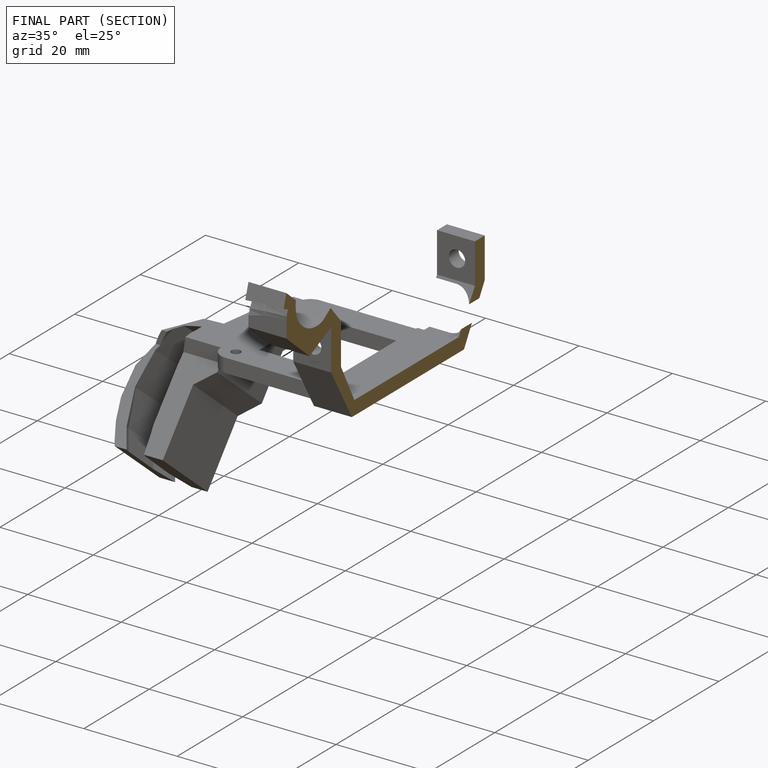
[diagram: finished part — half-section view (interior)]
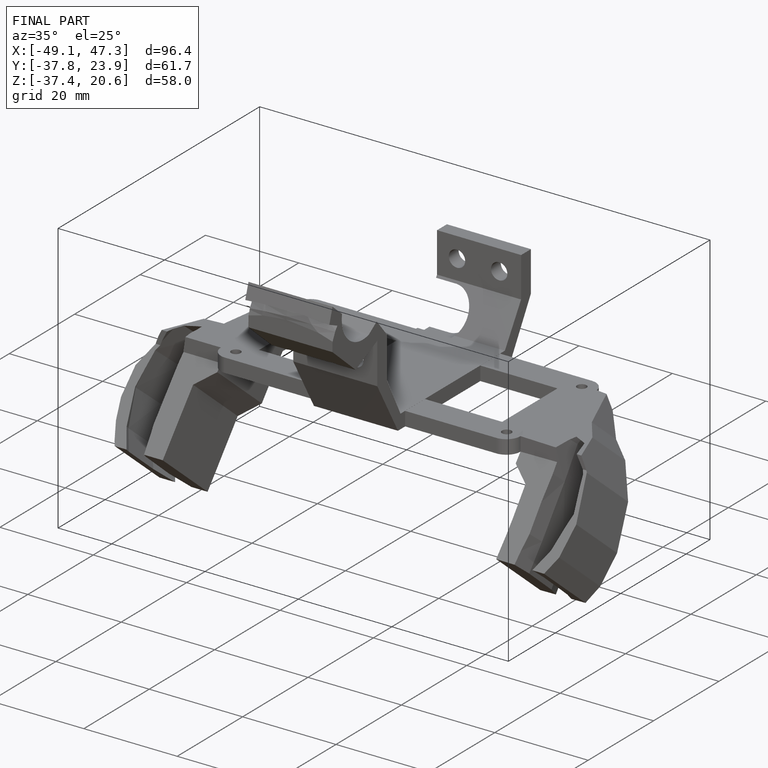
[diagram: finished part — iso view with bounding-box wireframe]
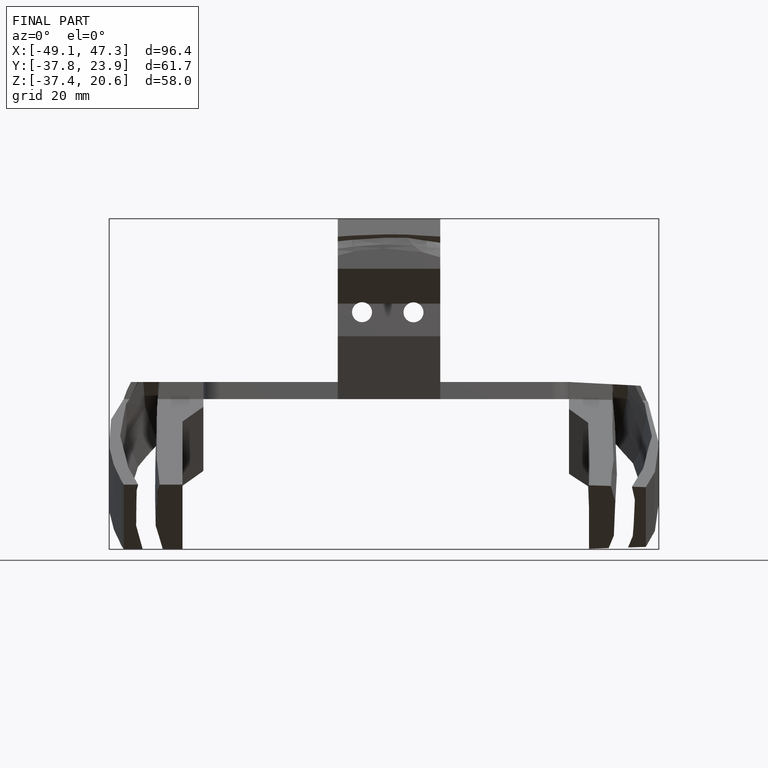
[diagram: finished part — front view with bounding-box wireframe]
